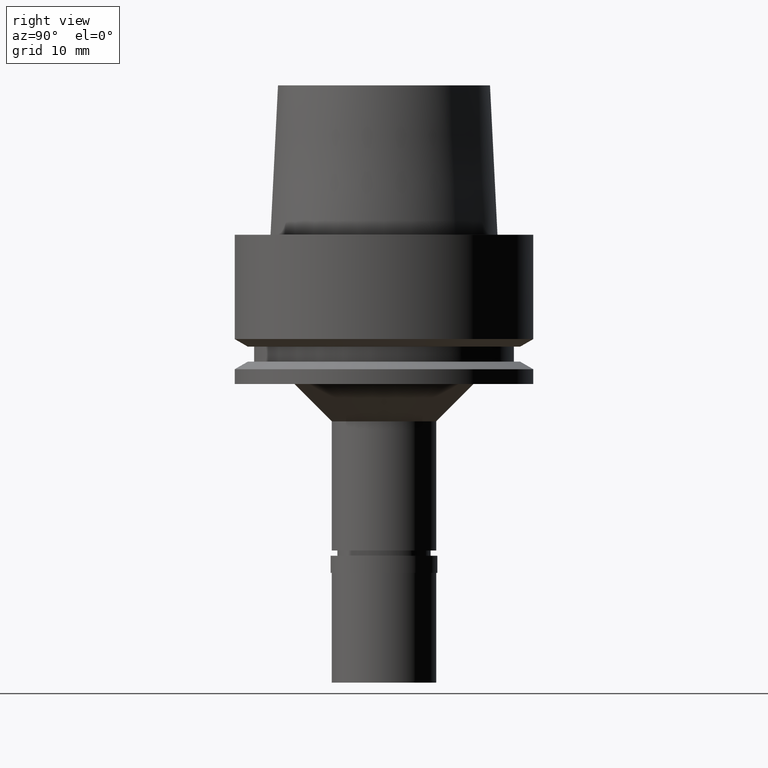
[diagram: clean part render]
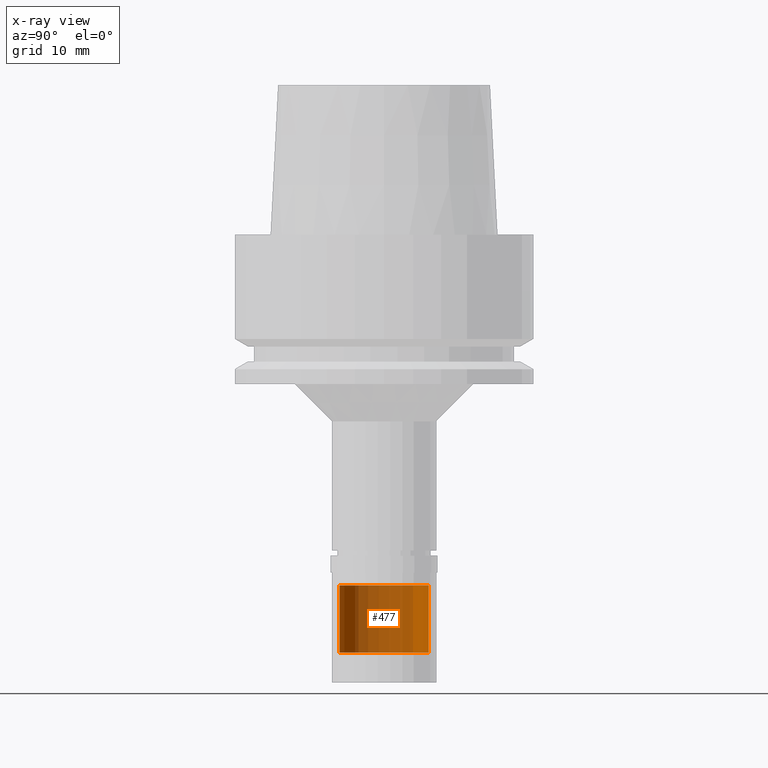
[diagram: x-ray — body ghosted, one internal face saturated and labeled with its STEP entity id]
A machine part, right view, then the same camera in x-ray: the body is ghosted and one INTERNAL B-rep face — a face not visible from any outside direction — is saturated and labeled: STEP entity #477.
In plain terms, the highlighted cylindrical surface (partial cylindrical patch) has radius 6 mm, axis along (0, 0, 1).
Its self-contained STEP definition (entity closure, byte-faithful):
#33 = CARTESIAN_POINT ( 'NONE',  ( 0.0000000000000000000, 6.000000000000000000, -47.00000000000000000 ) ) ;
#93 = EDGE_CURVE ( 'NONE', #891, #1779, #1793, .T. ) ;
#118 = CARTESIAN_POINT ( 'NONE',  ( 0.0000000000000000000, 6.000000000000000000, -47.00000000000000000 ) ) ;
#129 = EDGE_LOOP ( 'NONE', ( #1186, #2409, #2513, #1212 ) ) ;
#168 = DIRECTION ( 'NONE',  ( 0.0000000000000000000, 0.0000000000000000000, -1.000000000000000000 ) ) ;
#200 = EDGE_CURVE ( 'NONE', #891, #2183, #1519, .T. ) ;
#320 = EDGE_CURVE ( 'NONE', #2183, #1577, #2021, .T. ) ;
#341 = DIRECTION ( 'NONE',  ( 0.0000000000000000000, 0.0000000000000000000, -1.000000000000000000 ) ) ;
#474 = CARTESIAN_POINT ( 'NONE',  ( 0.0000000000000000000, 6.000000000000000000, -56.00000000000000000 ) ) ;
#477 = ADVANCED_FACE ( 'NONE', ( #2555 ), #1303, .T. ) ;
#677 = DIRECTION ( 'NONE',  ( 0.0000000000000000000, 1.000000000000000000, 0.0000000000000000000 ) ) ;
#692 = AXIS2_PLACEMENT_3D ( 'NONE', #975, #341, #1606 ) ;
#714 = VECTOR ( 'NONE', #168, 1000.000000000000000 ) ;
#858 = DIRECTION ( 'NONE',  ( 0.0000000000000000000, 0.0000000000000000000, 1.000000000000000000 ) ) ;
#887 = CARTESIAN_POINT ( 'NONE',  ( 0.0000000000000000000, 0.0000000000000000000, -56.00000000000000000 ) ) ;
#891 = VERTEX_POINT ( 'NONE', #2049 ) ;
#975 = CARTESIAN_POINT ( 'NONE',  ( 0.0000000000000000000, 0.0000000000000000000, -47.00000000000000000 ) ) ;
#1186 = ORIENTED_EDGE ( 'NONE', *, *, #1645, .T. ) ;
#1212 = ORIENTED_EDGE ( 'NONE', *, *, #320, .T. ) ;
#1303 = CYLINDRICAL_SURFACE ( 'NONE', #2499, 6.000000000000000000 ) ;
#1519 = CIRCLE ( 'NONE', #692, 6.000000000000000000 ) ;
#1530 = VECTOR ( 'NONE', #2421, 1000.000000000000000 ) ;
#1577 = VERTEX_POINT ( 'NONE', #474 ) ;
#1606 = DIRECTION ( 'NONE',  ( 0.0000000000000000000, -1.000000000000000000, 0.0000000000000000000 ) ) ;
#1645 = EDGE_CURVE ( 'NONE', #1577, #1779, #1869, .T. ) ;
#1694 = DIRECTION ( 'NONE',  ( 0.0000000000000000000, 1.000000000000000000, 0.0000000000000000000 ) ) ;
#1779 = VERTEX_POINT ( 'NONE', #1996 ) ;
#1793 = LINE ( 'NONE', #2637, #1530 ) ;
#1869 = CIRCLE ( 'NONE', #2085, 6.000000000000000000 ) ;
#1996 = CARTESIAN_POINT ( 'NONE',  ( 0.0000000000000000000, -6.000000000000000000, -56.00000000000000000 ) ) ;
#2021 = LINE ( 'NONE', #118, #714 ) ;
#2049 = CARTESIAN_POINT ( 'NONE',  ( 0.0000000000000000000, -6.000000000000000000, -47.00000000000000000 ) ) ;
#2085 = AXIS2_PLACEMENT_3D ( 'NONE', #887, #858, #1694 ) ;
#2136 = CARTESIAN_POINT ( 'NONE',  ( 0.0000000000000000000, 0.0000000000000000000, -59.79999999999999716 ) ) ;
#2183 = VERTEX_POINT ( 'NONE', #33 ) ;
#2356 = DIRECTION ( 'NONE',  ( 0.0000000000000000000, 0.0000000000000000000, 1.000000000000000000 ) ) ;
#2409 = ORIENTED_EDGE ( 'NONE', *, *, #93, .F. ) ;
#2421 = DIRECTION ( 'NONE',  ( 0.0000000000000000000, 0.0000000000000000000, -1.000000000000000000 ) ) ;
#2499 = AXIS2_PLACEMENT_3D ( 'NONE', #2136, #2356, #677 ) ;
#2513 = ORIENTED_EDGE ( 'NONE', *, *, #200, .T. ) ;
#2555 = FACE_OUTER_BOUND ( 'NONE', #129, .T. ) ;
#2637 = CARTESIAN_POINT ( 'NONE',  ( 0.0000000000000000000, -6.000000000000000000, -47.00000000000000000 ) ) ;